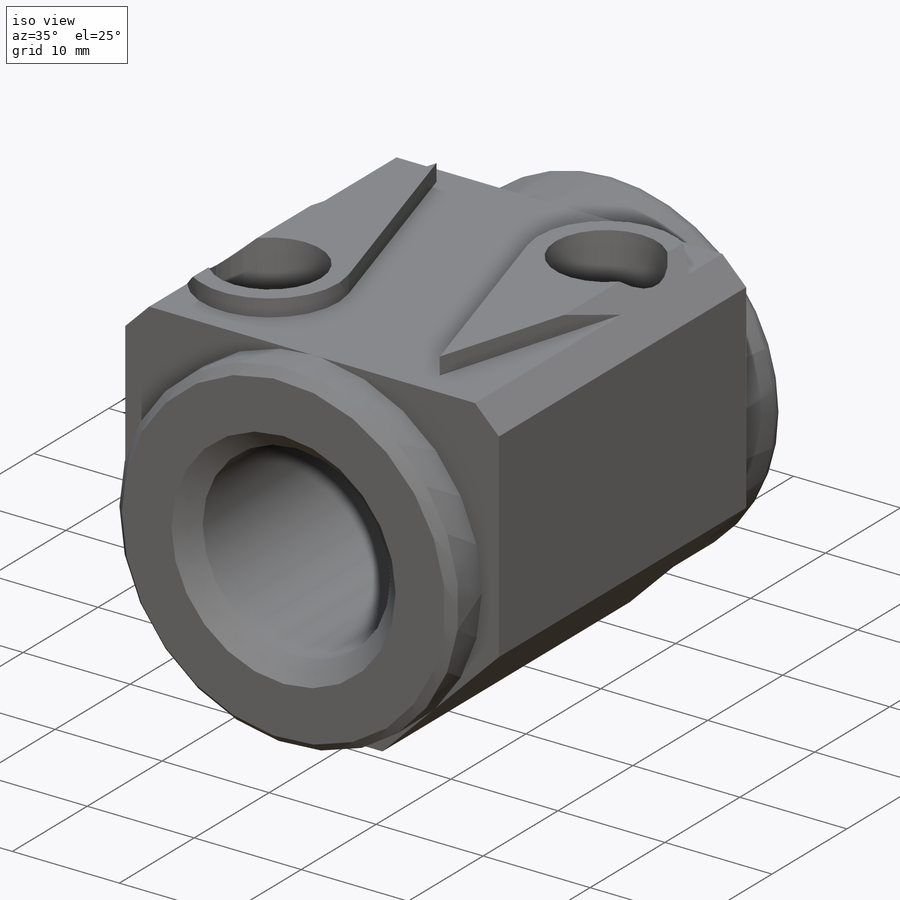
[diagram: iso view]
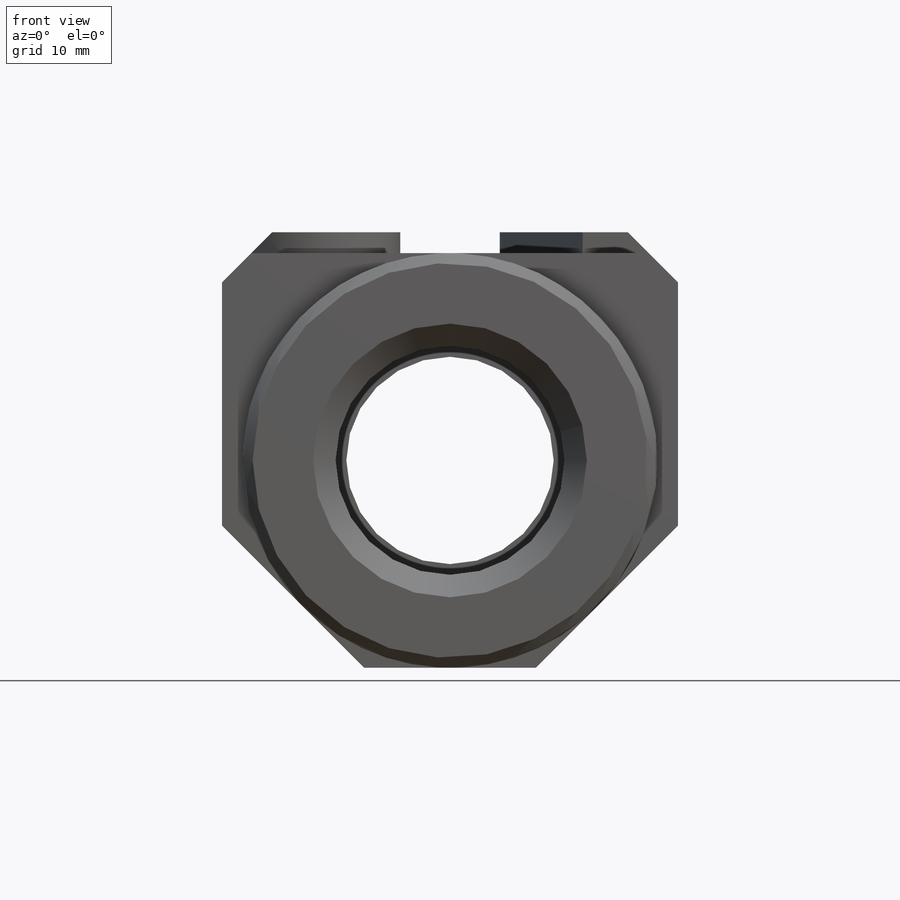
[diagram: front view]
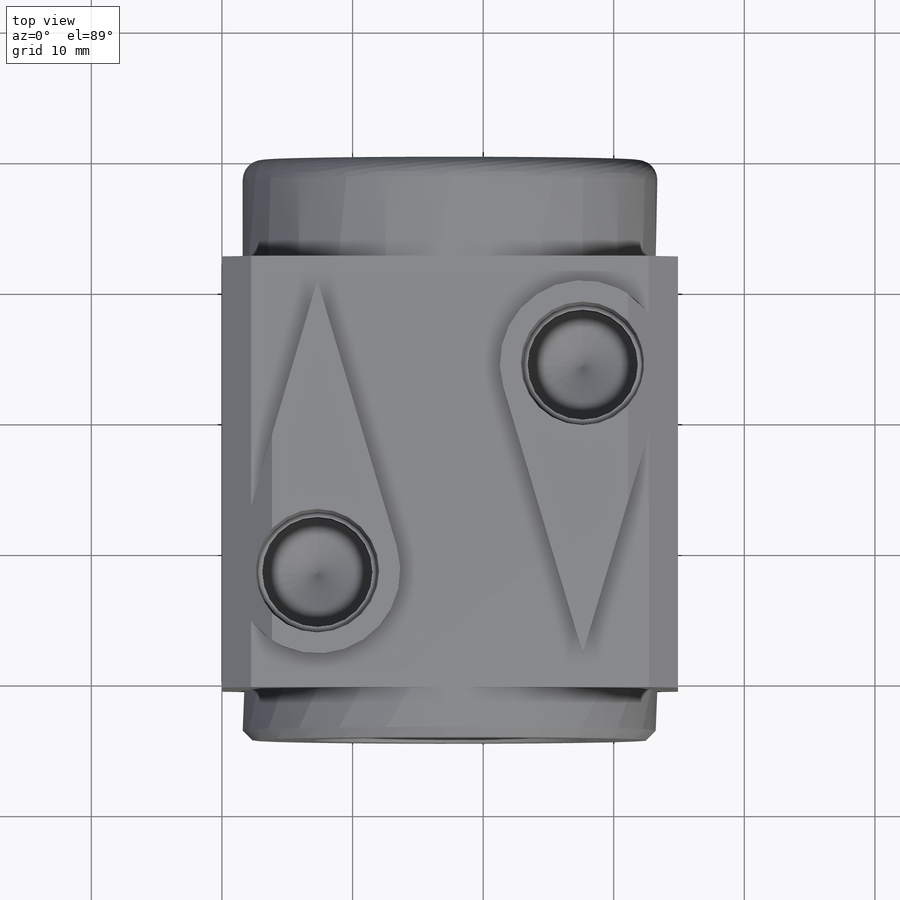
[diagram: top view]
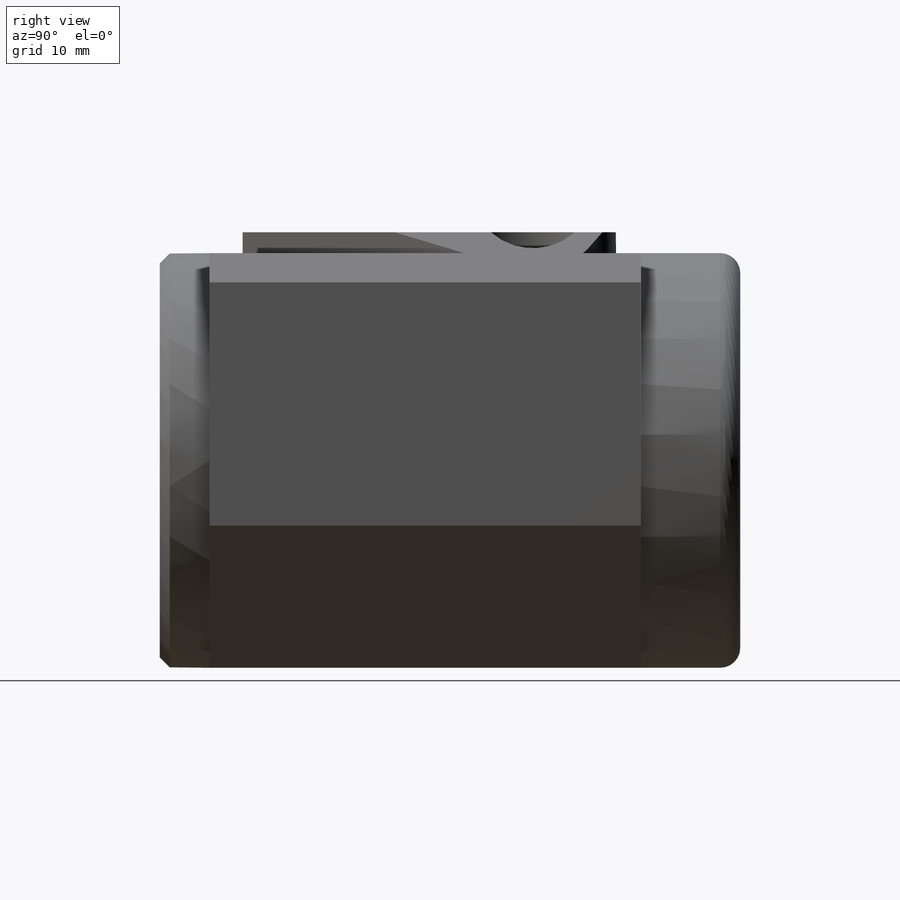
[diagram: right view]
SOLIDWORKS PART (.sldprt)
format: sldprt  version: not decoded by parser v0  size: 677,376 bytes
history: native  units: mm
features: sketch x15, cut_extrude x7, hole x3, thread x3, plane x3, chamfer x2, material x1, extrude x1, fillet x1 (+13 scaffold rows collapsed)
feature tree (49):
  scaffold x13  (default folders/planes/origin — collapsed)
  material  "Material <not specified>"
  sketch  "Sketch1"  dims[D1=33.3502mm D2=34.925mm]
  extrude  "Extrude1"  Depth=44.45mm
  sketch  "Sketch2"  dims[c1.D4=31.75mm c1.D1=15.875mm c1.D2=~10.07473mm c2.D2=45.0deg c2.D3=~9.470077mm c3.D3=45.0deg]
  cut_extrude  "Cut-Extrude1"  Depth=44.45mm
  sketch  "Sketch3"  dims[D1=31.75mm]
  cut_extrude  "Cut-Extrude2"  Depth=3.81mm
  hole  "1/8 NPT Tapped Hole1"  Diameter=8.4328mm Depth=21.844mm
  sketch  "3DSketch1"  dims[c1.D1=15.875mm c1.D2=~24.835011mm c1.D3=31.75mm c2.D3=~41.134734mm c2.D2=31.75mm c3.D3=10.16mm c3.D4=10.16mm c3.D5=~48.422273mm]
  sketch  "Sketch4"  dims[hole-wizard template sketch: 51 standard entries collapsed; hole parameters kept: c13.Tap Drill Depth=21.844mm c13.Thread Dia.=~9.455074mm c13.D4=~22.362017mm c13.Thread Angle=3.43deg c13.Thread Depth=6.35mm c13.D6=~25.48394mm c13.Drill Angle=118.0deg]
  thread  "Hole Thread1"  Diameter=6.35mm  [1 undecoded]
  thread  "Hole Thread2"  Diameter=6.35mm  [1 undecoded]
  sketch  "Sketch5"  dims[D1=31.75mm]
  cut_extrude  "Cut-Extrude3"  Depth=7.62mm
  sketch  "Sketch6"  dims[D1=12.7mm D2=12.7mm D3=22.225mm]
  cut_extrude  "Cut-Extrude4"  Depth=1.6002mm
  sketch  "Sketch8"  dims[c1.D1=7.6454mm c1.D2=~9.945175mm c2.D2=45.0deg c2.D3=7.6454mm c2.D4=~8.762063mm c3.D4=45.0deg c3.D5=2.2352mm c3.D1=2.2352mm]
  cut_extrude  "Cut-Extrude5"  [1 undecoded]
  hole  "5/8 (0.625) Diameter Hole1"  Diameter=15.875mm Depth=44.45mm
  sketch  "3DSketch4"
  sketch  "Sketch11"  dims[hole-wizard template sketch: 60 standard entries collapsed; hole parameters kept: c18.Thru Hole Depth=44.45mm]
  hole  "3/4-16 Tapped Hole1"  Diameter=17.526mm Depth=25.4mm
  sketch  "3DSketch5"
  sketch  "Sketch12"  dims[hole-wizard template sketch: 46 standard entries collapsed; hole parameters kept: c15.Tap Drill Dia.=17.526mm c15.Tap Drill Depth=25.4mm c15.D3=~14.816244mm c15.Drill Angle=118.0deg]
  thread  "Hole Thread3"  Diameter=9.652mm  [1 undecoded]
  plane  "Plane1"
  plane  "Plane2"  Offset=5.715mm
  sketch  "Sketch16"  dims[D1=20.32mm]
  cut_extrude  "Cut-Extrude7"  Depth=3.556mm
  chamfer  "Chamfer1"  Distance=0.762mm Angle=45deg
  fillet  "Fillet1"  Radius=1.524mm
  chamfer  "Chamfer2"  Distance=1.7145mm Angle=45deg
  sketch  "Sketch17"  dims[D1=17.526mm]
  plane  "Plane3"  Offset=12.446mm
  sketch  "Sketch18"  dims[D1=17.526mm]
  cut_extrude  "Cut-Extrude9"  Depth=7.62mm
decode coverage: 29 of 32 modeling features carry decoded parameters
note: ~ marks probable driven/reference dimensions
note: 4 parameter values undecoded
note: suppression state not decoded; provenance and decode notes live in map.json
